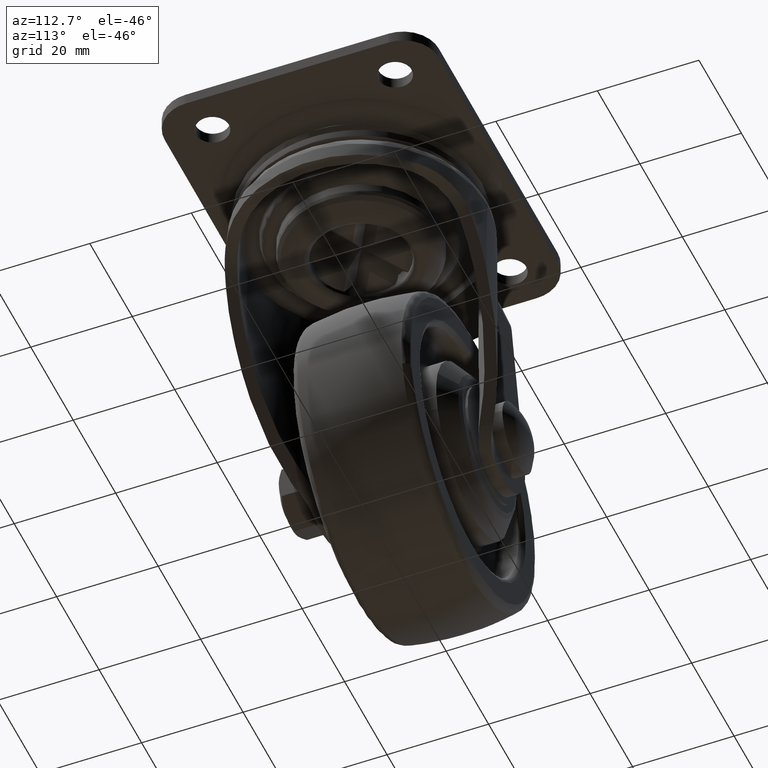
[diagram: clean part render]
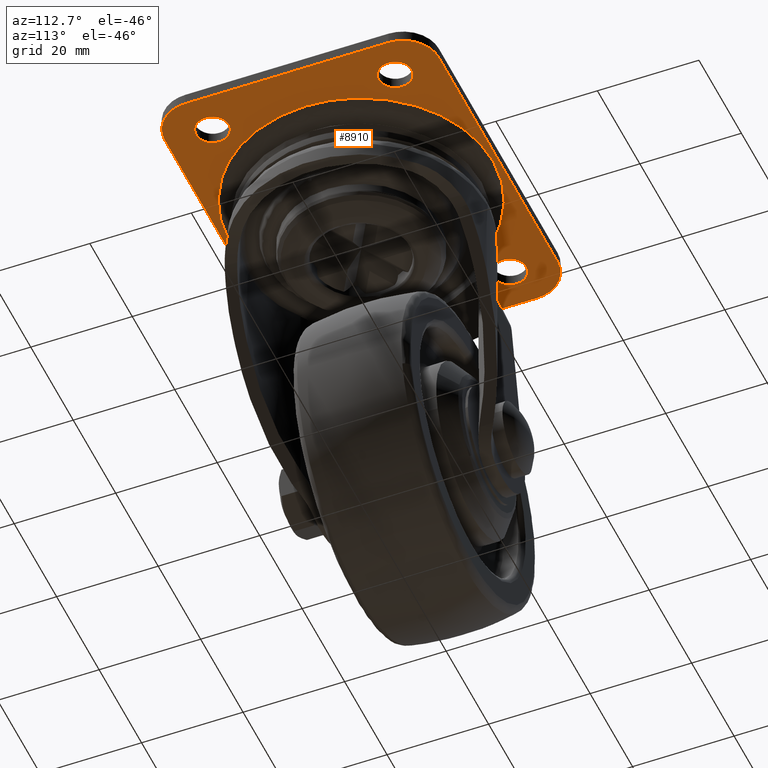
[diagram: same view with one face highlighted and labeled with its STEP entity id]
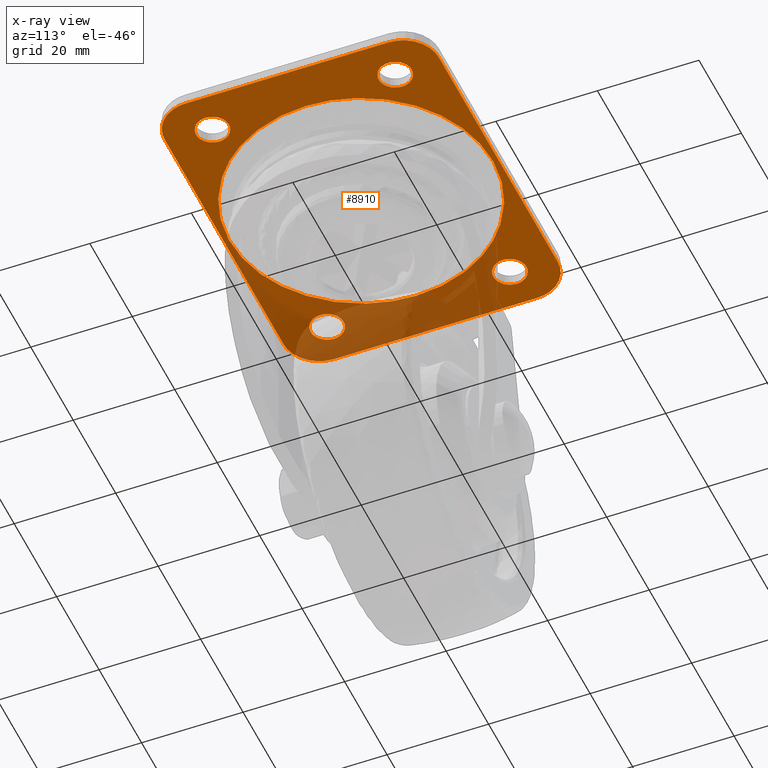
[diagram: x-ray of the same camera — body ghosted, the highlighted face saturated]
A machine part, auxiliary view. The second image highlights one B-rep face of the part: STEP entity #8910.
The next image is the same camera in x-ray: the body ghosted, the highlighted face saturated — about 32% of this face is hidden behind the body in this view.
In plain terms, the highlighted face is a freeform B-spline surface patch.
Its self-contained STEP definition (entity closure, byte-faithful):
#7189=CARTESIAN_POINT('',(-26.801592246478240,21.243938094869019,-2.300282999999960));
#7190=VERTEX_POINT('',#7189);
#7196=CARTESIAN_POINT('',(-23.750000000000000,18.0,-2.300282999999960));
#7197=VERTEX_POINT('',#7196);
#7198=CARTESIAN_POINT('',(-23.750000000000000,18.0,-2.300282999999960));
#7199=CARTESIAN_POINT('',(-23.750000000000000,21.057294717411899,-2.300282999999960));
#7200=CARTESIAN_POINT('',(-26.801592246478236,21.243938094869023,-2.300282999999960));
#7208=(BOUNDED_CURVE()B_SPLINE_CURVE(2,(#7198,#7199,#7200),.UNSPECIFIED.,.F.,.U.)B_SPLINE_CURVE_WITH_KNOTS((3,3),(0.500000000000000,0.739332962240188),.UNSPECIFIED.)CURVE()GEOMETRIC_REPRESENTATION_ITEM()RATIONAL_B_SPLINE_CURVE((1.0,0.719603993285252,0.976072041669385))REPRESENTATION_ITEM(''));
#7209=EDGE_CURVE('',#7197,#7190,#7208,.T.);
#7211=CARTESIAN_POINT('',(-27.198407753521760,14.756061905130981,-2.300282999999960));
#7212=VERTEX_POINT('',#7211);
#7213=CARTESIAN_POINT('',(-27.198407753521760,14.756061905130981,-2.300282999999959));
#7214=CARTESIAN_POINT('',(-27.099296480737191,14.750000000000004,-2.300282999999959));
#7215=CARTESIAN_POINT('',(-27.0,14.750000000000000,-2.300282999999960));
#7216=CARTESIAN_POINT('',(-23.749999999999996,14.749999999999993,-2.300282999999960));
#7217=CARTESIAN_POINT('',(-23.750000000000000,18.0,-2.300282999999960));
#7225=(BOUNDED_CURVE()B_SPLINE_CURVE(2,(#7213,#7214,#7215,#7216,#7217),.UNSPECIFIED.,.F.,.U.)B_SPLINE_CURVE_WITH_KNOTS((3,2,3),(0.239332962240188,0.250000000000000,0.500000000000000),.UNSPECIFIED.)CURVE()GEOMETRIC_REPRESENTATION_ITEM()RATIONAL_B_SPLINE_CURVE((0.976072041669386,0.987502787901296,1.0,0.707106781186547,1.0))REPRESENTATION_ITEM(''));
#7226=EDGE_CURVE('',#7212,#7197,#7225,.T.);
#7270=CARTESIAN_POINT('',(-30.250000000000000,18.0,-2.300282999999960));
#7271=VERTEX_POINT('',#7270);
#7272=CARTESIAN_POINT('',(-30.250000000000000,18.0,-2.300282999999960));
#7273=CARTESIAN_POINT('',(-30.250000000000007,14.942705282588097,-2.300282999999960));
#7274=CARTESIAN_POINT('',(-27.198407753521757,14.756061905130979,-2.300282999999960));
#7282=(BOUNDED_CURVE()B_SPLINE_CURVE(2,(#7272,#7273,#7274),.UNSPECIFIED.,.F.,.U.)B_SPLINE_CURVE_WITH_KNOTS((3,3),(0.0,0.239332962240188),.UNSPECIFIED.)CURVE()GEOMETRIC_REPRESENTATION_ITEM()RATIONAL_B_SPLINE_CURVE((1.0,0.719603993285252,0.976072041669386))REPRESENTATION_ITEM(''));
#7283=EDGE_CURVE('',#7271,#7212,#7282,.T.);
#7285=CARTESIAN_POINT('',(-26.801592246478236,21.243938094869023,-2.300282999999960));
#7286=CARTESIAN_POINT('',(-26.900703519262802,21.249999999999996,-2.300282999999959));
#7287=CARTESIAN_POINT('',(-27.0,21.250000000000000,-2.300282999999960));
#7288=CARTESIAN_POINT('',(-30.250000000000000,21.249999999999996,-2.300282999999960));
#7289=CARTESIAN_POINT('',(-30.250000000000000,18.0,-2.300282999999960));
#7297=(BOUNDED_CURVE()B_SPLINE_CURVE(2,(#7285,#7286,#7287,#7288,#7289),.UNSPECIFIED.,.F.,.U.)B_SPLINE_CURVE_WITH_KNOTS((3,2,3),(0.739332962240188,0.750000000000000,1.0),.UNSPECIFIED.)CURVE()GEOMETRIC_REPRESENTATION_ITEM()RATIONAL_B_SPLINE_CURVE((0.976072041669385,0.987502787901296,1.0,0.707106781186547,1.0))REPRESENTATION_ITEM(''));
#7298=EDGE_CURVE('',#7190,#7271,#7297,.T.);
#7371=CARTESIAN_POINT('',(-26.801592246478240,-14.756061905130981,-2.300282999999960));
#7372=VERTEX_POINT('',#7371);
#7378=CARTESIAN_POINT('',(-23.750000000000000,-18.0,-2.300282999999960));
#7379=VERTEX_POINT('',#7378);
#7380=CARTESIAN_POINT('',(-23.750000000000000,-18.0,-2.300282999999960));
#7381=CARTESIAN_POINT('',(-23.750000000000000,-14.942705282588095,-2.300282999999960));
#7382=CARTESIAN_POINT('',(-26.801592246478236,-14.756061905130984,-2.300282999999960));
#7390=(BOUNDED_CURVE()B_SPLINE_CURVE(2,(#7380,#7381,#7382),.UNSPECIFIED.,.F.,.U.)B_SPLINE_CURVE_WITH_KNOTS((3,3),(0.500000000000000,0.739332962240188),.UNSPECIFIED.)CURVE()GEOMETRIC_REPRESENTATION_ITEM()RATIONAL_B_SPLINE_CURVE((1.0,0.719603993285252,0.976072041669385))REPRESENTATION_ITEM(''));
#7391=EDGE_CURVE('',#7379,#7372,#7390,.T.);
#7393=CARTESIAN_POINT('',(-27.198407753521760,-21.243938094869019,-2.300282999999960));
#7394=VERTEX_POINT('',#7393);
#7395=CARTESIAN_POINT('',(-27.198407753521760,-21.243938094869012,-2.300282999999959));
#7396=CARTESIAN_POINT('',(-27.099296480737191,-21.250000000000000,-2.300282999999959));
#7397=CARTESIAN_POINT('',(-27.0,-21.250000000000000,-2.300282999999960));
#7398=CARTESIAN_POINT('',(-23.749999999999996,-21.249999999999996,-2.300282999999960));
#7399=CARTESIAN_POINT('',(-23.750000000000000,-18.0,-2.300282999999960));
#7407=(BOUNDED_CURVE()B_SPLINE_CURVE(2,(#7395,#7396,#7397,#7398,#7399),.UNSPECIFIED.,.F.,.U.)B_SPLINE_CURVE_WITH_KNOTS((3,2,3),(0.239332962240188,0.250000000000000,0.500000000000000),.UNSPECIFIED.)CURVE()GEOMETRIC_REPRESENTATION_ITEM()RATIONAL_B_SPLINE_CURVE((0.976072041669386,0.987502787901296,1.0,0.707106781186547,1.0))REPRESENTATION_ITEM(''));
#7408=EDGE_CURVE('',#7394,#7379,#7407,.T.);
#7452=CARTESIAN_POINT('',(-30.250000000000000,-18.0,-2.300282999999960));
#7453=VERTEX_POINT('',#7452);
#7454=CARTESIAN_POINT('',(-30.250000000000000,-18.0,-2.300282999999960));
#7455=CARTESIAN_POINT('',(-30.250000000000000,-21.057294717411907,-2.300282999999959));
#7456=CARTESIAN_POINT('',(-27.198407753521764,-21.243938094869012,-2.300282999999960));
#7464=(BOUNDED_CURVE()B_SPLINE_CURVE(2,(#7454,#7455,#7456),.UNSPECIFIED.,.F.,.U.)B_SPLINE_CURVE_WITH_KNOTS((3,3),(0.0,0.239332962240188),.UNSPECIFIED.)CURVE()GEOMETRIC_REPRESENTATION_ITEM()RATIONAL_B_SPLINE_CURVE((1.0,0.719603993285252,0.976072041669386))REPRESENTATION_ITEM(''));
#7465=EDGE_CURVE('',#7453,#7394,#7464,.T.);
#7467=CARTESIAN_POINT('',(-26.801592246478236,-14.756061905130984,-2.300282999999960));
#7468=CARTESIAN_POINT('',(-26.900703519262802,-14.750000000000000,-2.300282999999959));
#7469=CARTESIAN_POINT('',(-27.0,-14.750000000000000,-2.300282999999960));
#7470=CARTESIAN_POINT('',(-30.250000000000000,-14.749999999999993,-2.300282999999960));
#7471=CARTESIAN_POINT('',(-30.250000000000000,-18.0,-2.300282999999960));
#7479=(BOUNDED_CURVE()B_SPLINE_CURVE(2,(#7467,#7468,#7469,#7470,#7471),.UNSPECIFIED.,.F.,.U.)B_SPLINE_CURVE_WITH_KNOTS((3,2,3),(0.739332962240188,0.750000000000000,1.0),.UNSPECIFIED.)CURVE()GEOMETRIC_REPRESENTATION_ITEM()RATIONAL_B_SPLINE_CURVE((0.976072041669385,0.987502787901296,1.0,0.707106781186547,1.0))REPRESENTATION_ITEM(''));
#7480=EDGE_CURVE('',#7372,#7453,#7479,.T.);
#7553=CARTESIAN_POINT('',(27.198407753521760,21.243938094869019,-2.300282999999960));
#7554=VERTEX_POINT('',#7553);
#7560=CARTESIAN_POINT('',(30.250000000000000,18.0,-2.300282999999960));
#7561=VERTEX_POINT('',#7560);
#7562=CARTESIAN_POINT('',(30.250000000000000,18.0,-2.300282999999960));
#7563=CARTESIAN_POINT('',(30.250000000000011,21.057294717411910,-2.300282999999960));
#7564=CARTESIAN_POINT('',(27.198407753521749,21.243938094869012,-2.300282999999959));
#7572=(BOUNDED_CURVE()B_SPLINE_CURVE(2,(#7562,#7563,#7564),.UNSPECIFIED.,.F.,.U.)B_SPLINE_CURVE_WITH_KNOTS((3,3),(0.500000000000000,0.739332962240188),.UNSPECIFIED.)CURVE()GEOMETRIC_REPRESENTATION_ITEM()RATIONAL_B_SPLINE_CURVE((1.0,0.719603993285251,0.976072041669386))REPRESENTATION_ITEM(''));
#7573=EDGE_CURVE('',#7561,#7554,#7572,.T.);
#7575=CARTESIAN_POINT('',(26.801592246478240,14.756061905130981,-2.300282999999960));
#7576=VERTEX_POINT('',#7575);
#7577=CARTESIAN_POINT('',(26.801592246478243,14.756061905130981,-2.300282999999959));
#7578=CARTESIAN_POINT('',(26.900703519262809,14.750000000000004,-2.300282999999959));
#7579=CARTESIAN_POINT('',(27.0,14.750000000000000,-2.300282999999960));
#7580=CARTESIAN_POINT('',(30.250000000000000,14.749999999999993,-2.300282999999960));
#7581=CARTESIAN_POINT('',(30.250000000000000,18.0,-2.300282999999960));
#7589=(BOUNDED_CURVE()B_SPLINE_CURVE(2,(#7577,#7578,#7579,#7580,#7581),.UNSPECIFIED.,.F.,.U.)B_SPLINE_CURVE_WITH_KNOTS((3,2,3),(0.239332962240188,0.250000000000000,0.500000000000000),.UNSPECIFIED.)CURVE()GEOMETRIC_REPRESENTATION_ITEM()RATIONAL_B_SPLINE_CURVE((0.976072041669386,0.987502787901296,1.0,0.707106781186547,1.0))REPRESENTATION_ITEM(''));
#7590=EDGE_CURVE('',#7576,#7561,#7589,.T.);
#7634=CARTESIAN_POINT('',(23.750000000000000,18.0,-2.300282999999960));
#7635=VERTEX_POINT('',#7634);
#7636=CARTESIAN_POINT('',(23.750000000000000,18.0,-2.300282999999960));
#7637=CARTESIAN_POINT('',(23.750000000000004,14.942705282588097,-2.300282999999960));
#7638=CARTESIAN_POINT('',(26.801592246478240,14.756061905130981,-2.300282999999961));
#7646=(BOUNDED_CURVE()B_SPLINE_CURVE(2,(#7636,#7637,#7638),.UNSPECIFIED.,.F.,.U.)B_SPLINE_CURVE_WITH_KNOTS((3,3),(0.0,0.239332962240188),.UNSPECIFIED.)CURVE()GEOMETRIC_REPRESENTATION_ITEM()RATIONAL_B_SPLINE_CURVE((1.0,0.719603993285252,0.976072041669386))REPRESENTATION_ITEM(''));
#7647=EDGE_CURVE('',#7635,#7576,#7646,.T.);
#7649=CARTESIAN_POINT('',(27.198407753521749,21.243938094869012,-2.300282999999959));
#7650=CARTESIAN_POINT('',(27.099296480737191,21.250000000000000,-2.300282999999959));
#7651=CARTESIAN_POINT('',(27.0,21.250000000000000,-2.300282999999960));
#7652=CARTESIAN_POINT('',(23.749999999999996,21.249999999999996,-2.300282999999960));
#7653=CARTESIAN_POINT('',(23.750000000000000,18.0,-2.300282999999960));
#7661=(BOUNDED_CURVE()B_SPLINE_CURVE(2,(#7649,#7650,#7651,#7652,#7653),.UNSPECIFIED.,.F.,.U.)B_SPLINE_CURVE_WITH_KNOTS((3,2,3),(0.739332962240188,0.750000000000000,1.0),.UNSPECIFIED.)CURVE()GEOMETRIC_REPRESENTATION_ITEM()RATIONAL_B_SPLINE_CURVE((0.976072041669386,0.987502787901296,1.0,0.707106781186547,1.0))REPRESENTATION_ITEM(''));
#7662=EDGE_CURVE('',#7554,#7635,#7661,.T.);
#7735=CARTESIAN_POINT('',(27.198407753521760,-14.756061905130981,-2.300282999999960));
#7736=VERTEX_POINT('',#7735);
#7742=CARTESIAN_POINT('',(30.250000000000000,-18.0,-2.300282999999960));
#7743=VERTEX_POINT('',#7742);
#7744=CARTESIAN_POINT('',(30.250000000000000,-18.0,-2.300282999999960));
#7745=CARTESIAN_POINT('',(30.250000000000011,-14.942705282588090,-2.300282999999960));
#7746=CARTESIAN_POINT('',(27.198407753521749,-14.756061905130981,-2.300282999999959));
#7754=(BOUNDED_CURVE()B_SPLINE_CURVE(2,(#7744,#7745,#7746),.UNSPECIFIED.,.F.,.U.)B_SPLINE_CURVE_WITH_KNOTS((3,3),(0.500000000000000,0.739332962240188),.UNSPECIFIED.)CURVE()GEOMETRIC_REPRESENTATION_ITEM()RATIONAL_B_SPLINE_CURVE((1.0,0.719603993285251,0.976072041669386))REPRESENTATION_ITEM(''));
#7755=EDGE_CURVE('',#7743,#7736,#7754,.T.);
#7757=CARTESIAN_POINT('',(26.801592246478240,-21.243938094869019,-2.300282999999960));
#7758=VERTEX_POINT('',#7757);
#7759=CARTESIAN_POINT('',(26.801592246478243,-21.243938094869023,-2.300282999999960));
#7760=CARTESIAN_POINT('',(26.900703519262802,-21.249999999999993,-2.300282999999960));
#7761=CARTESIAN_POINT('',(27.0,-21.250000000000000,-2.300282999999960));
#7762=CARTESIAN_POINT('',(30.250000000000000,-21.249999999999996,-2.300282999999960));
#7763=CARTESIAN_POINT('',(30.250000000000000,-18.0,-2.300282999999960));
#7771=(BOUNDED_CURVE()B_SPLINE_CURVE(2,(#7759,#7760,#7761,#7762,#7763),.UNSPECIFIED.,.F.,.U.)B_SPLINE_CURVE_WITH_KNOTS((3,2,3),(0.239332962240188,0.250000000000000,0.500000000000000),.UNSPECIFIED.)CURVE()GEOMETRIC_REPRESENTATION_ITEM()RATIONAL_B_SPLINE_CURVE((0.976072041669386,0.987502787901296,1.0,0.707106781186547,1.0))REPRESENTATION_ITEM(''));
#7772=EDGE_CURVE('',#7758,#7743,#7771,.T.);
#7816=CARTESIAN_POINT('',(23.750000000000000,-18.0,-2.300282999999960));
#7817=VERTEX_POINT('',#7816);
#7818=CARTESIAN_POINT('',(23.750000000000000,-18.0,-2.300282999999960));
#7819=CARTESIAN_POINT('',(23.749999999999996,-21.057294717411892,-2.300282999999959));
#7820=CARTESIAN_POINT('',(26.801592246478251,-21.243938094869019,-2.300282999999960));
#7828=(BOUNDED_CURVE()B_SPLINE_CURVE(2,(#7818,#7819,#7820),.UNSPECIFIED.,.F.,.U.)B_SPLINE_CURVE_WITH_KNOTS((3,3),(0.0,0.239332962240188),.UNSPECIFIED.)CURVE()GEOMETRIC_REPRESENTATION_ITEM()RATIONAL_B_SPLINE_CURVE((1.0,0.719603993285251,0.976072041669386))REPRESENTATION_ITEM(''));
#7829=EDGE_CURVE('',#7817,#7758,#7828,.T.);
#7831=CARTESIAN_POINT('',(27.198407753521749,-14.756061905130981,-2.300282999999959));
#7832=CARTESIAN_POINT('',(27.099296480737191,-14.750000000000004,-2.300282999999959));
#7833=CARTESIAN_POINT('',(27.0,-14.750000000000000,-2.300282999999960));
#7834=CARTESIAN_POINT('',(23.749999999999996,-14.749999999999993,-2.300282999999960));
#7835=CARTESIAN_POINT('',(23.750000000000000,-18.0,-2.300282999999960));
#7843=(BOUNDED_CURVE()B_SPLINE_CURVE(2,(#7831,#7832,#7833,#7834,#7835),.UNSPECIFIED.,.F.,.U.)B_SPLINE_CURVE_WITH_KNOTS((3,2,3),(0.739332962240188,0.750000000000000,1.0),.UNSPECIFIED.)CURVE()GEOMETRIC_REPRESENTATION_ITEM()RATIONAL_B_SPLINE_CURVE((0.976072041669386,0.987502787901296,1.0,0.707106781186547,1.0))REPRESENTATION_ITEM(''));
#7844=EDGE_CURVE('',#7736,#7817,#7843,.T.);
#8529=CARTESIAN_POINT('',(15.282416342524920,-21.034441554914459,-2.300283000107477));
#8530=VERTEX_POINT('',#8529);
#8544=CARTESIAN_POINT('',(-25.999999630790299,0.0,-2.300283000000006));
#8545=VERTEX_POINT('',#8544);
#8546=CARTESIAN_POINT('',(15.282416342524915,-21.034441554914448,-2.300283000107477));
#8547=CARTESIAN_POINT('',(8.447911982028375,-25.999999630680261,-2.300283000098581));
#8548=CARTESIAN_POINT('',(-6.578194E-011,-25.999999630699762,-2.300283000081121));
#8549=CARTESIAN_POINT('',(-25.999999630812496,-25.999999630759731,-2.300283000027386));
#8550=CARTESIAN_POINT('',(-25.999999630790299,0.0,-2.300283000000006));
#8558=(BOUNDED_CURVE()B_SPLINE_CURVE(2,(#8546,#8547,#8548,#8549,#8550),.UNSPECIFIED.,.F.,.U.)B_SPLINE_CURVE_WITH_KNOTS((3,2,3),(0.648750340999566,0.750000000000000,1.0),.UNSPECIFIED.)CURVE()GEOMETRIC_REPRESENTATION_ITEM()RATIONAL_B_SPLINE_CURVE((0.858840265006167,0.881378645886394,1.0,0.707106781186548,1.0))REPRESENTATION_ITEM(''));
#8559=EDGE_CURVE('',#8530,#8545,#8558,.T.);
#8561=CARTESIAN_POINT('',(-15.282416342524920,21.034441554914459,-2.300283000107476));
#8562=VERTEX_POINT('',#8561);
#8563=CARTESIAN_POINT('',(-25.999999630790299,0.0,-2.300283000000006));
#8564=CARTESIAN_POINT('',(-25.999999630746725,13.247661498654905,-2.300283000053741));
#8565=CARTESIAN_POINT('',(-15.282416342524915,21.034441554914462,-2.300283000107477));
#8573=(BOUNDED_CURVE()B_SPLINE_CURVE(2,(#8563,#8564,#8565),.UNSPECIFIED.,.F.,.U.)B_SPLINE_CURVE_WITH_KNOTS((3,3),(0.0,0.148750340999566),.UNSPECIFIED.)CURVE()GEOMETRIC_REPRESENTATION_ITEM()RATIONAL_B_SPLINE_CURVE((1.0,0.825728135300153,0.858840265006167))REPRESENTATION_ITEM(''));
#8574=EDGE_CURVE('',#8545,#8562,#8573,.T.);
#8625=CARTESIAN_POINT('',(25.999999630790299,0.0,-2.300283000000000));
#8626=VERTEX_POINT('',#8625);
#8627=CARTESIAN_POINT('',(-15.282416342524918,21.034441554914455,-2.300283000107476));
#8628=CARTESIAN_POINT('',(-8.447911982028371,25.999999630680264,-2.300283000098579));
#8629=CARTESIAN_POINT('',(6.578818E-011,25.999999630699751,-2.300283000081119));
#8630=CARTESIAN_POINT('',(25.999999630812511,25.999999630759731,-2.300283000027381));
#8631=CARTESIAN_POINT('',(25.999999630790299,0.0,-2.300283000000000));
#8639=(BOUNDED_CURVE()B_SPLINE_CURVE(2,(#8627,#8628,#8629,#8630,#8631),.UNSPECIFIED.,.F.,.U.)B_SPLINE_CURVE_WITH_KNOTS((3,2,3),(0.148750340999566,0.250000000000000,0.500000000000000),.UNSPECIFIED.)CURVE()GEOMETRIC_REPRESENTATION_ITEM()RATIONAL_B_SPLINE_CURVE((0.858840265006166,0.881378645886394,1.0,0.707106781186548,1.0))REPRESENTATION_ITEM(''));
#8640=EDGE_CURVE('',#8562,#8626,#8639,.T.);
#8642=CARTESIAN_POINT('',(25.999999630790299,0.0,-2.300283000000000));
#8643=CARTESIAN_POINT('',(25.999999630746725,-13.247661498654905,-2.300283000053739));
#8644=CARTESIAN_POINT('',(15.282416342524915,-21.034441554914448,-2.300283000107477));
#8652=(BOUNDED_CURVE()B_SPLINE_CURVE(2,(#8642,#8643,#8644),.UNSPECIFIED.,.F.,.U.)B_SPLINE_CURVE_WITH_KNOTS((3,3),(0.500000000000000,0.648750340999566),.UNSPECIFIED.)CURVE()GEOMETRIC_REPRESENTATION_ITEM()RATIONAL_B_SPLINE_CURVE((1.0,0.825728135300153,0.858840265006167))REPRESENTATION_ITEM(''));
#8653=EDGE_CURVE('',#8626,#8530,#8652,.T.);
#8785=CARTESIAN_POINT('',(-38.496499864326417,29.697299895337519,-2.300283000000000));
#8786=CARTESIAN_POINT('',(38.496501741872727,29.697299895337519,-2.300283000000000));
#8787=CARTESIAN_POINT('',(-38.496499864326417,-29.697301343730391,-2.300283000000000));
#8788=CARTESIAN_POINT('',(38.496501741872727,-29.697301343730391,-2.300283000000000));
#8789=B_SPLINE_SURFACE_WITH_KNOTS('',1,1,((#8785,#8787),(#8786,#8788)),.UNSPECIFIED.,.F.,.F.,.U.,(2,2),(2,2),(0.0,76.993001606199158),(0.0,59.394601239067910),.UNSPECIFIED.);
#8790=CARTESIAN_POINT('',(28.0,27.0,-2.300282999999960));
#8791=VERTEX_POINT('',#8790);
#8792=CARTESIAN_POINT('',(-28.0,27.0,-2.300282999999960));
#8793=VERTEX_POINT('',#8792);
#8794=CARTESIAN_POINT('',(28.0,27.0,-2.300282999999960));
#8795=CARTESIAN_POINT('',(-28.0,27.0,-2.300282999999960));
#8796=QUASI_UNIFORM_CURVE('',1,(#8794,#8795),.UNSPECIFIED.,.F.,.U.);
#8797=EDGE_CURVE('',#8791,#8793,#8796,.T.);
#8798=ORIENTED_EDGE('',*,*,#8797,.F.);
#8799=CARTESIAN_POINT('',(35.0,20.0,-2.300282999999960));
#8800=VERTEX_POINT('',#8799);
#8801=CARTESIAN_POINT('',(35.0,20.0,-2.300282999999960));
#8802=CARTESIAN_POINT('',(35.0,27.0,-2.300282999999960));
#8803=CARTESIAN_POINT('',(28.0,27.0,-2.300282999999960));
#8811=(BOUNDED_CURVE()B_SPLINE_CURVE(2,(#8801,#8802,#8803),.UNSPECIFIED.,.F.,.U.)CURVE()GEOMETRIC_REPRESENTATION_ITEM()QUASI_UNIFORM_CURVE()RATIONAL_B_SPLINE_CURVE((1.0,0.707106781186547,1.0))REPRESENTATION_ITEM(''));
#8812=EDGE_CURVE('',#8800,#8791,#8811,.T.);
#8813=ORIENTED_EDGE('',*,*,#8812,.F.);
#8814=CARTESIAN_POINT('',(35.0,-20.0,-2.300282999999960));
#8815=VERTEX_POINT('',#8814);
#8816=CARTESIAN_POINT('',(35.0,-20.0,-2.300282999999960));
#8817=CARTESIAN_POINT('',(35.0,20.0,-2.300282999999960));
#8818=QUASI_UNIFORM_CURVE('',1,(#8816,#8817),.UNSPECIFIED.,.F.,.U.);
#8819=EDGE_CURVE('',#8815,#8800,#8818,.T.);
#8820=ORIENTED_EDGE('',*,*,#8819,.F.);
#8821=CARTESIAN_POINT('',(28.0,-27.0,-2.300282999999960));
#8822=VERTEX_POINT('',#8821);
#8823=CARTESIAN_POINT('',(28.0,-27.0,-2.300282999999960));
#8824=CARTESIAN_POINT('',(35.0,-27.0,-2.300282999999960));
#8825=CARTESIAN_POINT('',(35.0,-20.0,-2.300282999999960));
#8833=(BOUNDED_CURVE()B_SPLINE_CURVE(2,(#8823,#8824,#8825),.UNSPECIFIED.,.F.,.U.)CURVE()GEOMETRIC_REPRESENTATION_ITEM()QUASI_UNIFORM_CURVE()RATIONAL_B_SPLINE_CURVE((1.0,0.707106781186547,1.0))REPRESENTATION_ITEM(''));
#8834=EDGE_CURVE('',#8822,#8815,#8833,.T.);
#8835=ORIENTED_EDGE('',*,*,#8834,.F.);
#8836=CARTESIAN_POINT('',(-28.0,-27.0,-2.300282999999960));
#8837=VERTEX_POINT('',#8836);
#8838=CARTESIAN_POINT('',(-28.0,-27.0,-2.300282999999960));
#8839=CARTESIAN_POINT('',(28.0,-27.0,-2.300282999999960));
#8840=QUASI_UNIFORM_CURVE('',1,(#8838,#8839),.UNSPECIFIED.,.F.,.U.);
#8841=EDGE_CURVE('',#8837,#8822,#8840,.T.);
#8842=ORIENTED_EDGE('',*,*,#8841,.F.);
#8843=CARTESIAN_POINT('',(-35.0,-20.0,-2.300282999999960));
#8844=VERTEX_POINT('',#8843);
#8845=CARTESIAN_POINT('',(-35.0,-20.0,-2.300282999999960));
#8846=CARTESIAN_POINT('',(-35.0,-27.0,-2.300282999999960));
#8847=CARTESIAN_POINT('',(-28.0,-27.0,-2.300282999999960));
#8855=(BOUNDED_CURVE()B_SPLINE_CURVE(2,(#8845,#8846,#8847),.UNSPECIFIED.,.F.,.U.)CURVE()GEOMETRIC_REPRESENTATION_ITEM()QUASI_UNIFORM_CURVE()RATIONAL_B_SPLINE_CURVE((1.0,0.707106781186547,1.0))REPRESENTATION_ITEM(''));
#8856=EDGE_CURVE('',#8844,#8837,#8855,.T.);
#8857=ORIENTED_EDGE('',*,*,#8856,.F.);
#8858=CARTESIAN_POINT('',(-35.0,20.0,-2.300282999999960));
#8859=VERTEX_POINT('',#8858);
#8860=CARTESIAN_POINT('',(-35.0,20.0,-2.300282999999960));
#8861=CARTESIAN_POINT('',(-35.0,-20.0,-2.300282999999960));
#8862=QUASI_UNIFORM_CURVE('',1,(#8860,#8861),.UNSPECIFIED.,.F.,.U.);
#8863=EDGE_CURVE('',#8859,#8844,#8862,.T.);
#8864=ORIENTED_EDGE('',*,*,#8863,.F.);
#8865=CARTESIAN_POINT('',(-28.0,27.0,-2.300282999999960));
#8866=CARTESIAN_POINT('',(-35.0,27.0,-2.300282999999960));
#8867=CARTESIAN_POINT('',(-35.0,20.0,-2.300282999999960));
#8875=(BOUNDED_CURVE()B_SPLINE_CURVE(2,(#8865,#8866,#8867),.UNSPECIFIED.,.F.,.U.)CURVE()GEOMETRIC_REPRESENTATION_ITEM()QUASI_UNIFORM_CURVE()RATIONAL_B_SPLINE_CURVE((1.0,0.707106781186547,1.0))REPRESENTATION_ITEM(''));
#8876=EDGE_CURVE('',#8793,#8859,#8875,.T.);
#8877=ORIENTED_EDGE('',*,*,#8876,.F.);
#8878=EDGE_LOOP('',(#8798,#8813,#8820,#8835,#8842,#8857,#8864,#8877));
#8879=FACE_OUTER_BOUND('',#8878,.T.);
#8880=ORIENTED_EDGE('',*,*,#8574,.F.);
#8881=ORIENTED_EDGE('',*,*,#8559,.F.);
#8882=ORIENTED_EDGE('',*,*,#8653,.F.);
#8883=ORIENTED_EDGE('',*,*,#8640,.F.);
#8884=EDGE_LOOP('',(#8880,#8881,#8882,#8883));
#8885=FACE_BOUND('',#8884,.T.);
#8886=ORIENTED_EDGE('',*,*,#7755,.T.);
#8887=ORIENTED_EDGE('',*,*,#7844,.T.);
#8888=ORIENTED_EDGE('',*,*,#7829,.T.);
#8889=ORIENTED_EDGE('',*,*,#7772,.T.);
#8890=EDGE_LOOP('',(#8886,#8887,#8888,#8889));
#8891=FACE_BOUND('',#8890,.T.);
#8892=ORIENTED_EDGE('',*,*,#7573,.T.);
#8893=ORIENTED_EDGE('',*,*,#7662,.T.);
#8894=ORIENTED_EDGE('',*,*,#7647,.T.);
#8895=ORIENTED_EDGE('',*,*,#7590,.T.);
#8896=EDGE_LOOP('',(#8892,#8893,#8894,#8895));
#8897=FACE_BOUND('',#8896,.T.);
#8898=ORIENTED_EDGE('',*,*,#7391,.T.);
#8899=ORIENTED_EDGE('',*,*,#7480,.T.);
#8900=ORIENTED_EDGE('',*,*,#7465,.T.);
#8901=ORIENTED_EDGE('',*,*,#7408,.T.);
#8902=EDGE_LOOP('',(#8898,#8899,#8900,#8901));
#8903=FACE_BOUND('',#8902,.T.);
#8904=ORIENTED_EDGE('',*,*,#7209,.T.);
#8905=ORIENTED_EDGE('',*,*,#7298,.T.);
#8906=ORIENTED_EDGE('',*,*,#7283,.T.);
#8907=ORIENTED_EDGE('',*,*,#7226,.T.);
#8908=EDGE_LOOP('',(#8904,#8905,#8906,#8907));
#8909=FACE_BOUND('',#8908,.T.);
#8910=ADVANCED_FACE('',(#8879,#8885,#8891,#8897,#8903,#8909),#8789,.T.);